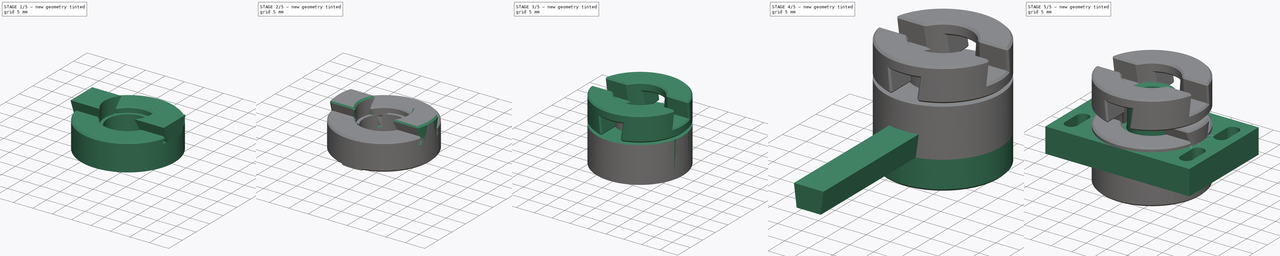
[diagram: build sequence overview — one tinted view per stage of 5, left to right]
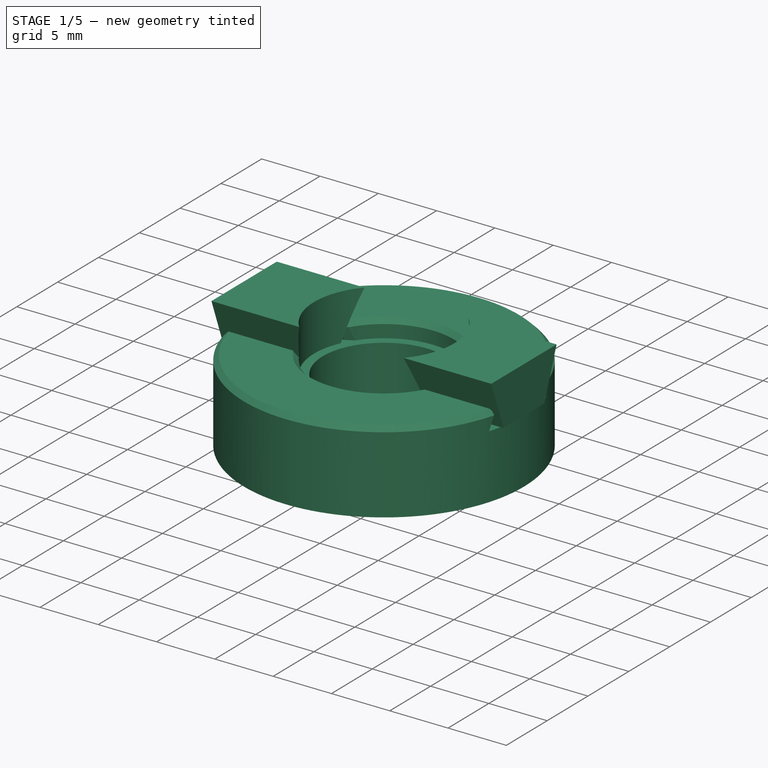
[diagram: stage 1 of 5 — iso view after this stage's code; geometry added in this stage tinted green]
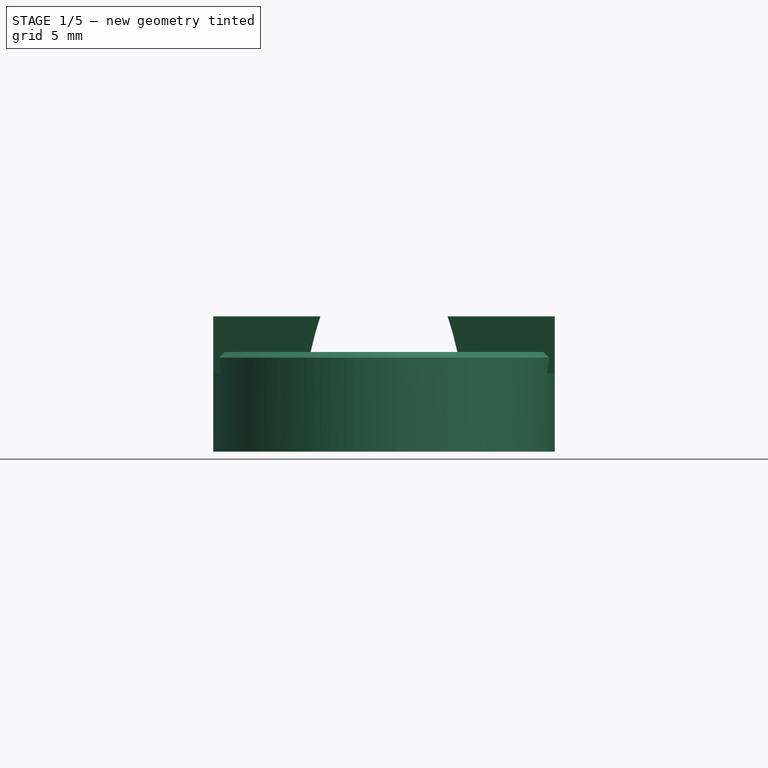
[diagram: stage 1 of 5 — front view after this stage's code; geometry added in this stage tinted green]
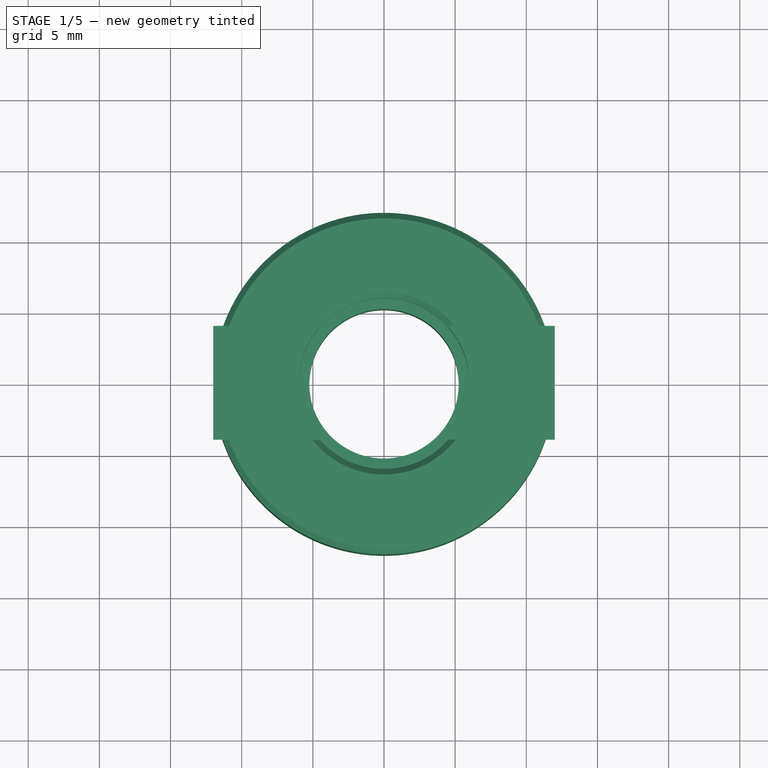
[diagram: stage 1 of 5 — top view after this stage's code; geometry added in this stage tinted green]
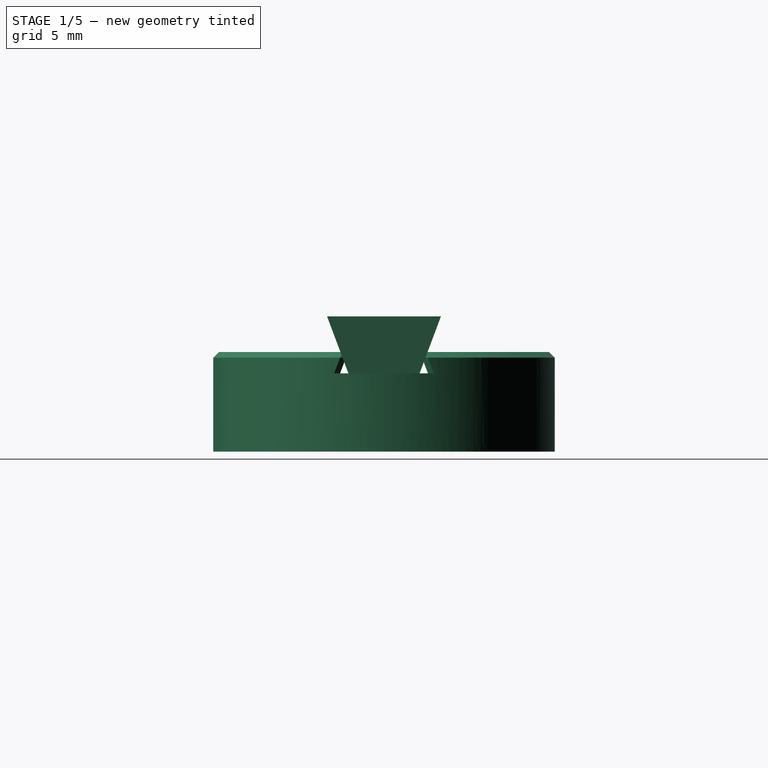
[diagram: stage 1 of 5 — right view after this stage's code; geometry added in this stage tinted green]
FCSTD DOCUMENT  (FreeCAD 0.19R24366 (Git))
Label: nut-mounter
License: All rights reserved
LicenseURL: http://en.wikipedia.org/wiki/All_rights_reserved
objects: Sketcher::SketchObject×19, PartDesign::Pad×10, PartDesign::Pocket×9, PartDesign::Body×7, Part::FeaturePython×3, PartDesign::Chamfer×3, Part::MultiFuse×3, Part::Feature×3, Part::MultiCommon×2, Part::Chamfer×2, PartDesign::Plane×2, Spreadsheet::Sheet×1, Part::Cut×1, App::DocumentObjectGroup×1
note: 86 computed .brp shape members not serialized (recipe doc carries the construction recipe); baked Part::Feature solids carry a one-line shape summary decoded from their .brp

FEATURE [App::DocumentObjectGroup] Group  label="testing"
  Group = -> [Fusion003,Chamfer002,Common001,Body,Body001]
FEATURE [Sketcher::SketchObject] Sketch010
  FullyConstrained = true
  MapMode = 5
  Support = -> [XY_Plane005]
  expr: Constraints[2] = <<args>>.top_bottom_inner_radius
  expr: Constraints[3] = <<args>>.top_bottom_outer_radius
  sketch-geometry (2):
    g0: Circle CenterX=0 CenterY=0 CenterZ=0 NormalX=0 NormalY=0 NormalZ=1 AngleXU=0 Radius=12
    g1: Circle CenterX=0 CenterY=0 CenterZ=0 NormalX=0 NormalY=0 NormalZ=1 AngleXU=0 Radius=5.25
  constraints (4):
    c: Coincident(g0,g-1)
    c: Coincident(g1,g0)
    c: Radius(g1) = 5.25
    c: Radius(g0) = 12
FEATURE [PartDesign::Pad] Pad007
  Direction = (1,1,1)
  Length = 5.5
  Length2 = 100
  Profile = -> Sketch010
  Type = 0
  expr: Length = <<args>>.top_thickness
FEATURE [PartDesign::Plane] DatumPlane
  Length = 60
  MapMode = 5
  Placement = pos=(0,0,0) rot=(0.57735,0.57735,0.57735;2.0944rad)
  ResizeMode = 0
  Support = -> [YZ_Plane005]
  Width = 60
FEATURE [Sketcher::SketchObject] Sketch011
  FullyConstrained = true
  MapMode = 5
  Placement = pos=(0,0,0) rot=(0.57735,0.57735,0.57735;2.0944rad)
  Support = -> [DatumPlane]
  expr: Constraints[6] = <<args>>.top_thickness
  expr: Constraints[7] = <<args>>.teeth_bottom_width
  expr: Constraints[8] = <<args>>.teeth_bottom_width / 2
  expr: Constraints[9] = <<args>>.teeth_top_width
  expr: Constraints[10] = <<args>>.teeth_top_width / 2
  expr: Constraints[11] = <<args>>.teeth_heigh
  sketch-geometry (4):
    g0: LineSegment StartX=-2.5 StartY=5.5 StartZ=0 EndX=2.5 EndY=5.5 EndZ=0
    g1: LineSegment StartX=2.5 StartY=5.5 StartZ=0 EndX=4 EndY=9.5 EndZ=0
    g2: LineSegment StartX=4 StartY=9.5 StartZ=0 EndX=-4 EndY=9.5 EndZ=0
    g3: LineSegment StartX=-4 StartY=9.5 StartZ=0 EndX=-2.5 EndY=5.5 EndZ=0
  constraints (12):
    c: Horizontal(g0)
    c: Coincident(g0,g1)
    c: Coincident(g1,g2)
    c: Horizontal(g2)
    c: Coincident(g2,g3)
    c: Coincident(g3,g0)
    c: DistanceY(g-1,g0) = 5.5
    c: DistanceX(g0,g0) = 5
    c: DistanceX(g-1,g0) = 2.5
    c: DistanceX(g2,g2) = 8
    c: DistanceX(g-1,g1) = 4
    c: DistanceY(g0,g1) = 4
FEATURE [PartDesign::Pad] Pad008
  BaseFeature = -> Pad007
  Direction = (1,1,1)
  Length = 24
  Length2 = 100
  Midplane = true
  Profile = -> Sketch011
  Type = 0
  expr: Length = <<args>>.top_bottom_outer_radius * 2
FEATURE [PartDesign::Plane] DatumPlane001
  AttachmentOffset = pos=(0,0,5.5) rot=(0,0,1;0rad)
  Length = 60
  MapMode = 5
  Placement = pos=(0,0,5.5) rot=(0,0,1;0rad)
  ResizeMode = 0
  Support = -> [XY_Plane005]
  Width = 60
  expr: .AttachmentOffset.Base.z = <<args>>.top_thickness
FEATURE [Sketcher::SketchObject] Sketch012
  FullyConstrained = false
  MapMode = 5
  Placement = pos=(0,0,5.5) rot=(0,0,1;0rad)
  Support = -> [DatumPlane001]
  expr: Constraints[0] = <<args>>.teeth_inner_radius
  sketch-geometry (1):
    g0: Circle CenterX=0 CenterY=0 CenterZ=0 NormalX=0 NormalY=0 NormalZ=1 AngleXU=0 Radius=6
  constraints (1):
    c: Radius(g0) = 6
FEATURE [PartDesign::Pocket] Pocket003
  BaseFeature = -> Pad008
  Length = 4
  Length2 = 100
  Profile = -> Sketch012
  Reversed = true
  Type = 0
  expr: Length = <<args>>.teeth_heigh
FEATURE [PartDesign::Body] Body005  label="top"
  Group = -> [Sketch010,Pad007,DatumPlane,Sketch011,Pad008,DatumPlane001,Sketch012,Pocket003,Sketch013,Pocket004,Sketch014,Pocket005,Sketch015,Pocket006,Chamfer003]
  Origin = -> Origin005
  Placement = pos=(0,0,-11) rot=(0,0,1;0rad)
  Tip = -> Chamfer003
FEATURE [Sketcher::SketchObject] Sketch022
  FullyConstrained = true
  MapMode = 5
  Support = -> [XY_Plane007]
  expr: Constraints[2] = <<args>>.center_inner_radius
  expr: Constraints[3] = <<args>>.center_outer_radius
  sketch-geometry (2):
    g0: Circle CenterX=0 CenterY=0 CenterZ=0 NormalX=0 NormalY=0 NormalZ=1 AngleXU=0 Radius=12
    g1: Circle CenterX=0 CenterY=0 CenterZ=0 NormalX=0 NormalY=0 NormalZ=1 AngleXU=0 Radius=6
  constraints (4):
    c: Coincident(g0,g-1)
    c: Coincident(g1,g0)
    c: Radius(g1) = 6
    c: Radius(g0) = 12
FEATURE [PartDesign::Pad] Pad011
  Direction = (1,1,1)
  Length = 7
  Length2 = 100
  Profile = -> Sketch022
  Type = 0
  expr: Length = <<args>>.center_thickness
FEATURE [Sketcher::SketchObject] Sketch023
  FullyConstrained = true
  MapMode = 5
  Placement = pos=(0,0,0) rot=(1,0,0;1.5708rad)
  Support = -> [XZ_Plane007]
  expr: Constraints[7] = <<args>>.teeth_top_width
  expr: Constraints[8] = <<args>>.teeth_bottom_width
  expr: Constraints[9] = <<args>>.teeth_top_width / 2
  expr: Constraints[22] = <<args>>.offset
  expr: Constraints[10] = <<args>>.teeth_bottom_width / 2
  expr: Constraints[11] = <<args>>.teeth_heigh
  expr: Constraints[23] = <<args>>.offset
  sketch-geometry (8):
    g0: LineSegment StartX=-2.5 StartY=0 StartZ=0 EndX=2.5 EndY=0 EndZ=0
    g1: LineSegment StartX=2.5 StartY=0 StartZ=0 EndX=4 EndY=4 EndZ=0
    g2: LineSegment StartX=4 StartY=4 StartZ=0 EndX=-4 EndY=4 EndZ=0
    g3: LineSegment StartX=-4 StartY=4 StartZ=0 EndX=-2.5 EndY=0 EndZ=0
    g4: LineSegment StartX=-2.525 StartY=0 StartZ=0 EndX=2.525 EndY=0 EndZ=0
    g5: LineSegment StartX=2.525 StartY=0 StartZ=0 EndX=4.2125 EndY=4.5 EndZ=0
    g6: LineSegment StartX=4.2125 StartY=4.5 StartZ=0 EndX=-4.2125 EndY=4.5 EndZ=0
    g7: LineSegment StartX=-4.2125 StartY=4.5 StartZ=0 EndX=-2.525 EndY=0 EndZ=0
  constraints (24):
    c: PointOnObject(g0,g-1)
    c: Horizontal(g0)
    c: Coincident(g0,g1)
    c: Coincident(g1,g2)
    c: Horizontal(g2)
    c: Coincident(g2,g3)
    c: Coincident(g3,g0)
    c: DistanceX(g2,g2) = 8
    c: DistanceX(g0,g0) = 5
    c: DistanceX(g2,g-1) = 4
    c: DistanceX(g0,g-1) = 2.5
    c: DistanceY(g-1,g2) = 4
    c: PointOnObject(g4,g-1)
    c: Horizontal(g4)
    c: Coincident(g4,g5)
    c: Coincident(g5,g6)
    c: Horizontal(g6)
    c: Coincident(g6,g7)
    c: Coincident(g7,g4)
    c: Parallel(g7,g3)
    c: Parallel(g1,g5)
    c: DistanceY(g2,g6) = 0.5
    c: DistanceX(g4,g0) = 0.025
    c: DistanceX(g0,g4) = 0.025
FEATURE [PartDesign::Pocket] Pocket011
  BaseFeature = -> Pad011
  Length = 5
  Length2 = 100
  Midplane = true
  Profile = -> Sketch023
  Type = 1
FEATURE [Sketcher::SketchObject] Sketch024
  ExternalGeometry = -> [Pocket011]
  FullyConstrained = true
  MapMode = 5
  Placement = pos=(0,0,0) rot=(0.57735,0.57735,0.57735;2.0944rad)
  Support = -> [YZ_Plane007]
  expr: Constraints[7] = <<args>>.teeth_bottom_width
  expr: Constraints[8] = <<args>>.teeth_bottom_width / 2
  expr: Constraints[9] = <<args>>.teeth_top_width
  expr: Constraints[22] = <<args>>.offset
  expr: Constraints[10] = <<args>>.teeth_top_width / 2
  expr: Constraints[11] = <<args>>.teeth_heigh
  expr: Constraints[23] = <<args>>.offset
  sketch-geometry (8):
    g0: LineSegment StartX=-2.5 StartY=7 StartZ=0 EndX=2.5 EndY=7 EndZ=0
    g1: LineSegment StartX=2.5 StartY=7 StartZ=0 EndX=4 EndY=3 EndZ=0
    g2: LineSegment StartX=4 StartY=3 StartZ=0 EndX=-4 EndY=3 EndZ=0
    g3: LineSegment StartX=-4 StartY=3 StartZ=0 EndX=-2.5 EndY=7 EndZ=0
    g4: LineSegment StartX=-2.525 StartY=7 StartZ=0 EndX=2.525 EndY=7 EndZ=0
    g5: LineSegment StartX=2.525 StartY=7 StartZ=0 EndX=4.2125 EndY=2.5 EndZ=0
    g6: LineSegment StartX=4.2125 StartY=2.5 StartZ=0 EndX=-4.2125 EndY=2.5 EndZ=0
    g7: LineSegment StartX=-4.2125 StartY=2.5 StartZ=0 EndX=-2.525 EndY=7 EndZ=0
  constraints (24):
    c: PointOnObject(g0,g-3)
    c: PointOnObject(g0,g-3)
    c: Coincident(g0,g1)
    c: Coincident(g1,g2)
    c: Horizontal(g2)
    c: Coincident(g2,g3)
    c: Coincident(g3,g0)
    c: DistanceX(g0,g0) = 5
    c: DistanceX(g0,g-1) = 2.5
    c: DistanceX(g2,g2) = 8
    c: DistanceX(g2,g-1) = 4
    c: DistanceY(g2,g0) = 4
    c: PointOnObject(g4,g-3)
    c: PointOnObject(g4,g-3)
    c: Coincident(g4,g5)
    c: Coincident(g5,g6)
    c: Horizontal(g6)
    c: Coincident(g6,g7)
    c: Coincident(g7,g4)
    c: Parallel(g7,g3)
    c: Parallel(g1,g5)
    c: DistanceY(g6,g2) = 0.5
    c: DistanceX(g4,g0) = 0.025
    c: DistanceX(g0,g4) = 0.025
FEATURE [PartDesign::Pocket] Pocket012
  BaseFeature = -> Pocket011
  Length = 5
  Length2 = 100
  Midplane = true
  Profile = -> Sketch024
  Type = 1
FEATURE [PartDesign::Chamfer] Chamfer005
  Angle = 45
  Base = -> Pocket012 [Face8,Face4,Face14,Face10,Edge12,Edge13,Edge14,Edge41,Edge43,Edge45,Edge18,Edge17,Edge16,Edge53,Edge51,Edge49,Edge3,Edge2,Edge9,Edge10,Edge36,Edge22,Edge21,Edge25,Edge28,Edge30,Edge32,Edge7,Edge6,Edge5]
  BaseFeature = -> Pocket012
  ChamferType = 0
  FlipDirection = false
  Size = 0.4
  Size2 = 1
  SupportTransform = false
FEATURE [PartDesign::Body] Body007  label="middle"
  Group = -> [Sketch022,Pad011,Sketch023,Pocket011,Sketch024,Pocket012,Chamfer005]
  Origin = -> Origin007
  Tip = -> Chamfer005
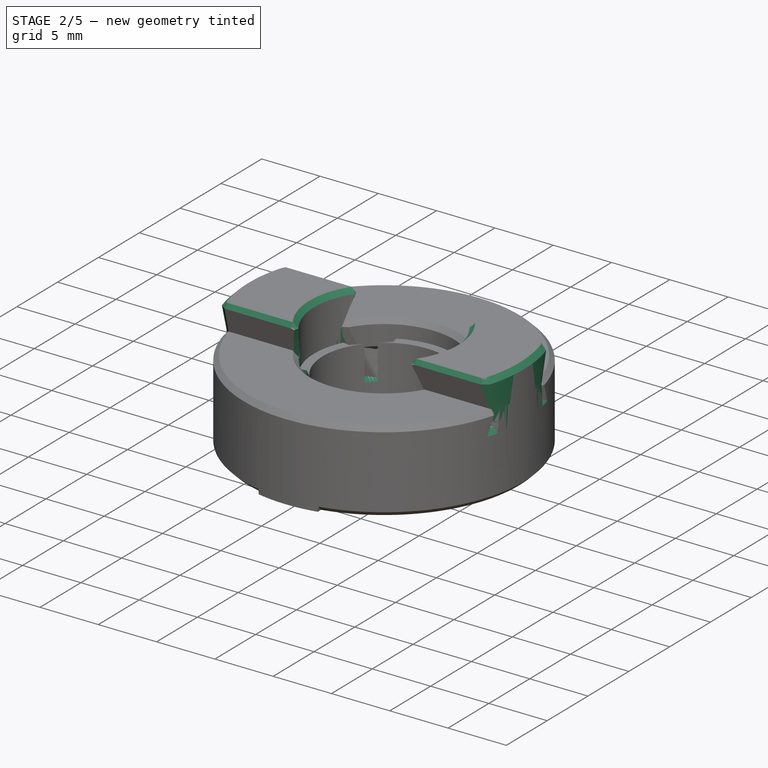
[diagram: stage 2 of 5 — iso view after this stage's code; geometry added in this stage tinted green]
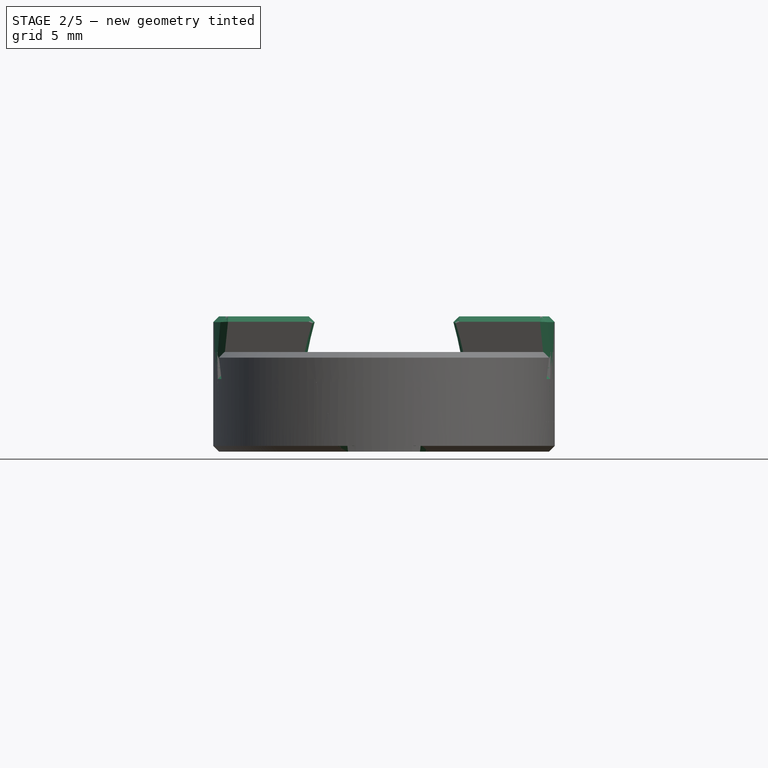
[diagram: stage 2 of 5 — front view after this stage's code; geometry added in this stage tinted green]
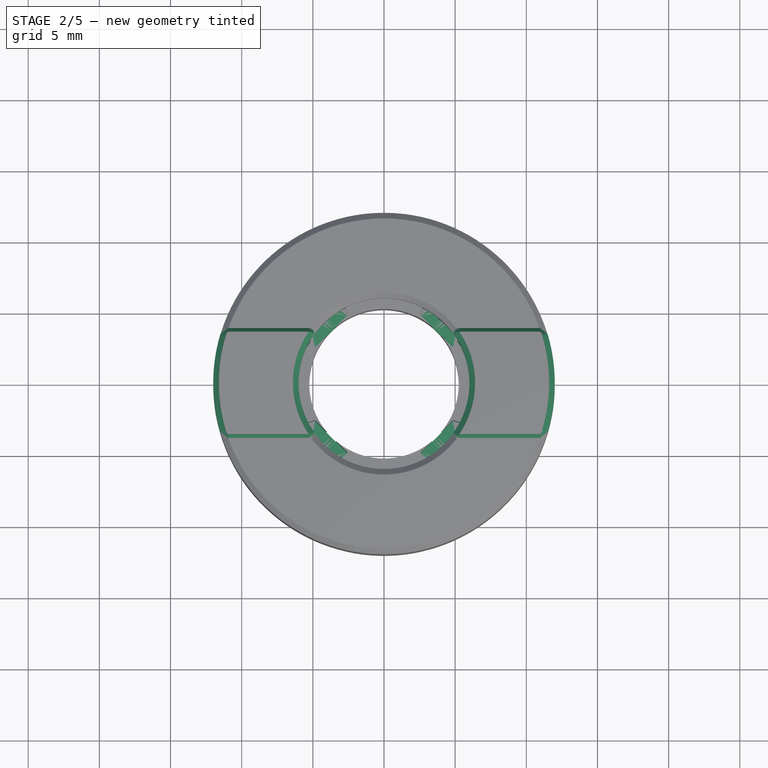
[diagram: stage 2 of 5 — top view after this stage's code; geometry added in this stage tinted green]
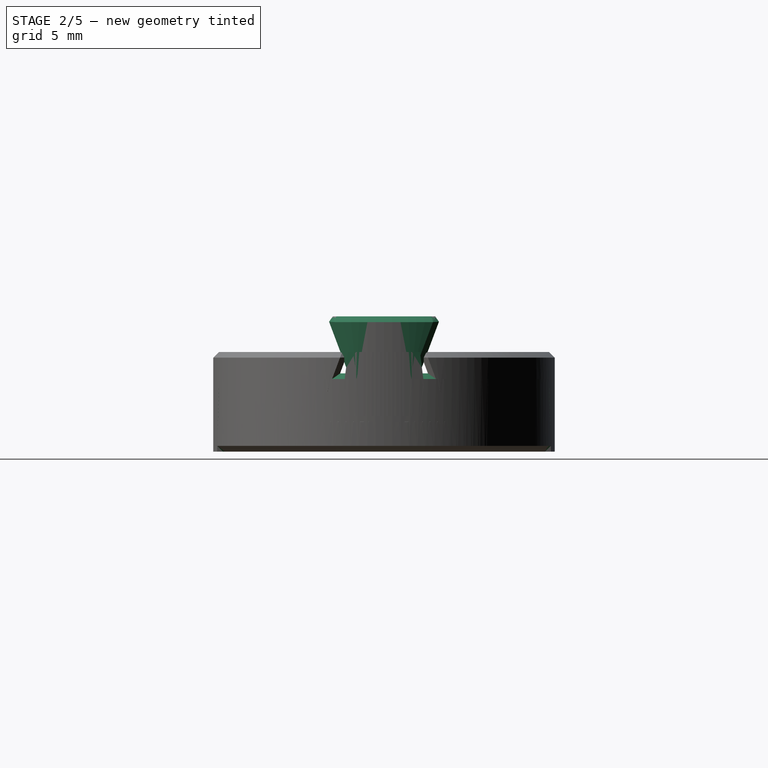
[diagram: stage 2 of 5 — right view after this stage's code; geometry added in this stage tinted green]
FEATURE [Part::Feature] Common001001  label="teeth-female-base001"
  shape: bbox 6.175 x 6.855 x 4.5 mm, 6 faces (baked)
FEATURE [Part::Feature] Common001002  label="teeth-female-base002"
  Placement = pos=(0,0,0) rot=(0,0,1;3.14159rad)
  shape: bbox 6.175 x 6.855 x 4.5 mm, 6 faces (baked)
FEATURE [Part::MultiFuse] Fusion
  Shapes = -> [Common001002,Common001001]
FEATURE [Part::Feature] Fusion004
  Placement = pos=(-1e-15,0,7) rot=(0.707107,0.707107,0;3.14159rad)
  shape: bbox 24 x 6.175 x 4.5 mm, 12 faces, 2 solids (baked)
FEATURE [Part::MultiFuse] Fusion005
  Shapes = -> [Fusion004,Fusion]
FEATURE [Sketcher::SketchObject] Sketch013
  FullyConstrained = true
  MapMode = 5
  Placement = pos=(0,0,5.5) rot=(0,0,1;0rad)
  Support = -> [DatumPlane001]
  expr: Constraints[2] = <<args>>.top_bottom_outer_radius
  expr: Constraints[3] = <<args>>.top_bottom_outer_radius + 5
  sketch-geometry (2):
    g0: Circle CenterX=0 CenterY=0 CenterZ=0 NormalX=0 NormalY=0 NormalZ=1 AngleXU=0 Radius=17
    g1: Circle CenterX=0 CenterY=0 CenterZ=0 NormalX=0 NormalY=0 NormalZ=1 AngleXU=0 Radius=12
  constraints (4):
    c: Coincident(g0,g-1)
    c: Coincident(g1,g0)
    c: Radius(g1) = 12
    c: Radius(g0) = 17
FEATURE [PartDesign::Pocket] Pocket004
  BaseFeature = -> Pocket003
  Length = 5
  Length2 = 100
  Profile = -> Sketch013
  Reversed = true
  Type = 0
FEATURE [Sketcher::SketchObject] Sketch014
  FullyConstrained = true
  MapMode = 5
  Placement = pos=(0,0,5.5) rot=(0,0,1;0rad)
  Support = -> [DatumPlane001]
  expr: Constraints[1] = <<args>>.screw_spacing_radius
  expr: Constraints[9] = <<args>>.screw_hole_radius
  sketch-geometry (7):
    g0: Circle CenterX=0 CenterY=0 CenterZ=0 NormalX=0 NormalY=0 NormalZ=1 AngleXU=0 Radius=8
    g1: Circle CenterX=-5.65685 CenterY=5.65685 CenterZ=0 NormalX=0 NormalY=0 NormalZ=1 AngleXU=0 Radius=1.5
    g2: Circle CenterX=5.65685 CenterY=5.65685 CenterZ=0 NormalX=0 NormalY=0 NormalZ=1 AngleXU=0 Radius=1.5
    g3: Circle CenterX=-5.65685 CenterY=-5.65685 CenterZ=0 NormalX=0 NormalY=0 NormalZ=1 AngleXU=0 Radius=1.5
    g4: Circle CenterX=5.65685 CenterY=-5.65685 CenterZ=0 NormalX=0 NormalY=0 NormalZ=1 AngleXU=0 Radius=1.5
    g5: LineSegment StartX=-5.65685 StartY=5.65685 StartZ=0 EndX=5.65685 EndY=-5.65685 EndZ=0
    g6: LineSegment StartX=-5.65685 StartY=-5.65685 StartZ=0 EndX=5.65685 EndY=5.65685 EndZ=0
  constraints (18):
    c: Coincident(g0,g-1)
    c: Radius(g0) = 8
    c: PointOnObject(g1,g0)
    c: PointOnObject(g2,g0)
    c: PointOnObject(g3,g0)
    c: PointOnObject(g4,g0)
    c: Equal(g1,g3)
    c: Equal(g3,g4)
    c: Equal(g4,g2)
    c: Radius(g1) = 1.5
    c: Horizontal(g1,g2)
    c: Horizontal(g3,g4)
    c: Vertical(g3,g1)
    c: Coincident(g5,g1)
    c: Coincident(g5,g4)
    c: Coincident(g6,g3)
    c: Coincident(g6,g2)
    c: Perpendicular(g6,g5)
FEATURE [PartDesign::Pocket] Pocket005
  BaseFeature = -> Pocket004
  Length = 5
  Length2 = 100
  Profile = -> Sketch014
  Refine = true
  Type = 1
FEATURE [Sketcher::SketchObject] Sketch015
  AttachmentOffset = pos=(0,0,0) rot=(0,0,1;0.785398rad)
  ExternalGeometry = -> [Pocket005]
  FullyConstrained = true
  MapMode = 5
  Placement = pos=(-2e-16,0,5.5) rot=(0,0,1;0.785398rad)
  Support = -> [Pocket005]
  expr: Constraints[75] = <<args>>.screw_nut_radius
  sketch-geometry (28):
    g0: LineSegment StartX=-5.22872 StartY=-1.6 StartZ=0 EndX=-5.22872 EndY=1.6 EndZ=0
    g1: LineSegment StartX=-5.22872 StartY=1.6 StartZ=0 EndX=-8 EndY=3.2 EndZ=0
    g2: LineSegment StartX=-8 StartY=3.2 StartZ=0 EndX=-10.7713 EndY=1.6 EndZ=0
    g3: LineSegment StartX=-10.7713 StartY=1.6 StartZ=0 EndX=-10.7713 EndY=-1.6 EndZ=0
    g4: LineSegment StartX=-10.7713 StartY=-1.6 StartZ=0 EndX=-8 EndY=-3.2 EndZ=0
    g5: LineSegment StartX=-8 StartY=-3.2 StartZ=0 EndX=-5.22872 EndY=-1.6 EndZ=0
    g6: Circle CenterX=-8 CenterY=7e-16 CenterZ=0 NormalX=0 NormalY=0 NormalZ=1 AngleXU=0 Radius=3.2
    g7: LineSegment StartX=10.7713 StartY=-1.6 StartZ=0 EndX=10.7713 EndY=1.6 EndZ=0
    g8: LineSegment StartX=10.7713 StartY=1.6 StartZ=0 EndX=8 EndY=3.2 EndZ=0
    g9: LineSegment StartX=8 StartY=3.2 StartZ=0 EndX=5.22872 EndY=1.6 EndZ=0
    g10: LineSegment StartX=5.22872 StartY=1.6 StartZ=0 EndX=5.22872 EndY=-1.6 EndZ=0
    g11: LineSegment StartX=5.22872 StartY=-1.6 StartZ=0 EndX=8 EndY=-3.2 EndZ=0
    g12: LineSegment StartX=8 StartY=-3.2 StartZ=0 EndX=10.7713 EndY=-1.6 EndZ=0
    g13: Circle CenterX=8 CenterY=-1.9e-15 CenterZ=0 NormalX=0 NormalY=0 NormalZ=1 AngleXU=0 Radius=3.2
    g14: LineSegment StartX=1.6 StartY=-10.7713 StartZ=0 EndX=3.2 EndY=-8 EndZ=0
    g15: LineSegment StartX=3.2 StartY=-8 StartZ=0 EndX=1.6 EndY=-5.22872 EndZ=0
    g16: LineSegment StartX=1.6 StartY=-5.22872 StartZ=0 EndX=-1.6 EndY=-5.22872 EndZ=0
    g17: LineSegment StartX=-1.6 StartY=-5.22872 StartZ=0 EndX=-3.2 EndY=-8 EndZ=0
    g18: LineSegment StartX=-3.2 StartY=-8 StartZ=0 EndX=-1.6 EndY=-10.7713 EndZ=0
    g19: LineSegment StartX=-1.6 StartY=-10.7713 StartZ=0 EndX=1.6 EndY=-10.7713 EndZ=0
    g20: Circle CenterX=1e-16 CenterY=-8 CenterZ=0 NormalX=0 NormalY=0 NormalZ=1 AngleXU=0 Radius=3.2
    g21: LineSegment StartX=1.6 StartY=5.22872 StartZ=0 EndX=3.2 EndY=8 EndZ=0
    g22: LineSegment StartX=3.2 StartY=8 StartZ=0 EndX=1.6 EndY=10.7713 EndZ=0
    g23: LineSegment StartX=1.6 StartY=10.7713 StartZ=0 EndX=-1.6 EndY=10.7713 EndZ=0
    g24: LineSegment StartX=-1.6 StartY=10.7713 StartZ=0 EndX=-3.2 EndY=8 EndZ=0
    g25: LineSegment StartX=-3.2 StartY=8 StartZ=0 EndX=-1.6 EndY=5.22872 EndZ=0
    g26: LineSegment StartX=-1.6 StartY=5.22872 StartZ=0 EndX=1.6 EndY=5.22872 EndZ=0
    g27: Circle CenterX=1e-16 CenterY=8 CenterZ=0 NormalX=0 NormalY=0 NormalZ=1 AngleXU=0 Radius=3.2
  constraints (64):
    c: Coincident(g0,g1)
    c: Coincident(g1,g2)
    c: Coincident(g2,g3)
    c: Coincident(g3,g4)
    c: Coincident(g4,g5)
    c: Coincident(g5,g0)
    c: Equal(g0, g1-g5) x5
    c: PointOnObject(g0,g6)
    c: PointOnObject(g1,g6)
    c: PointOnObject(g2,g6)
    c: PointOnObject(g3,g6)
    c: PointOnObject(g4,g6)
    c: PointOnObject(g5,g6)
    c: Coincident(g6,g-5)
    c: Coincident(g7,g8)
    c: Coincident(g8,g9)
    c: Coincident(g9,g10)
    c: Coincident(g10,g11)
    c: Coincident(g11,g12)
    c: Coincident(g12,g7)
    c: Equal(g7, g8-g12) x5
    c: PointOnObject(g7,g13)
    c: PointOnObject(g8,g13)
    c: PointOnObject(g9,g13)
    c: PointOnObject(g10,g13)
    c: PointOnObject(g11,g13)
    c: PointOnObject(g12,g13)
    c: Coincident(g13,g-4)
    c: Coincident(g14,g15)
    c: Coincident(g15,g16)
    c: Coincident(g16,g17)
    c: Coincident(g17,g18)
    c: Coincident(g18,g19)
    c: Coincident(g19,g14)
    c: Equal(g14, g15-g19) x5
    c: PointOnObject(g14,g20)
    c: PointOnObject(g15,g20)
    c: PointOnObject(g16,g20)
    c: PointOnObject(g17,g20)
    c: PointOnObject(g18,g20)
    c: PointOnObject(g19,g20)
    c: Coincident(g20,g-6)
    c: Coincident(g21,g22)
    c: Coincident(g22,g23)
    c: Coincident(g23,g24)
    c: Coincident(g24,g25)
    c: Coincident(g25,g26)
    c: Coincident(g26,g21)
    c: Equal(g21, g22-g26) x5
    c: PointOnObject(g21,g27)
    c: PointOnObject(g22,g27)
    c: PointOnObject(g23,g27)
    c: PointOnObject(g24,g27)
    c: PointOnObject(g25,g27)
    c: PointOnObject(g26,g27)
    c: Coincident(g27,g-3)
    c: Equal(g27,g6)
    c: Equal(g6,g20)
    c: Equal(g20,g13)
    c: Radius(g27) = 3.2
    c: Horizontal(g24,g27)
    c: Horizontal(g17,g20)
    c: Vertical(g6,g1)
    c: Vertical(g13,g8)
FEATURE [PartDesign::Pocket] Pocket006
  BaseFeature = -> Pocket005
  Length = 3
  Length2 = 100
  Profile = -> Sketch015
  Type = 0
  expr: Length = <<args>>.mounting_nut_deep
FEATURE [PartDesign::Chamfer] Chamfer003
  Angle = 45
  Base = -> Pocket006 [Face8,Edge15,Edge61,Face5,Edge60,Edge1,Edge3,Face7,Edge62,Edge8,Edge13,Edge72,Edge14,Edge7]
  BaseFeature = -> Pocket006
  ChamferType = 0
  FlipDirection = false
  Size = 0.4
  Size2 = 1
  SupportTransform = false
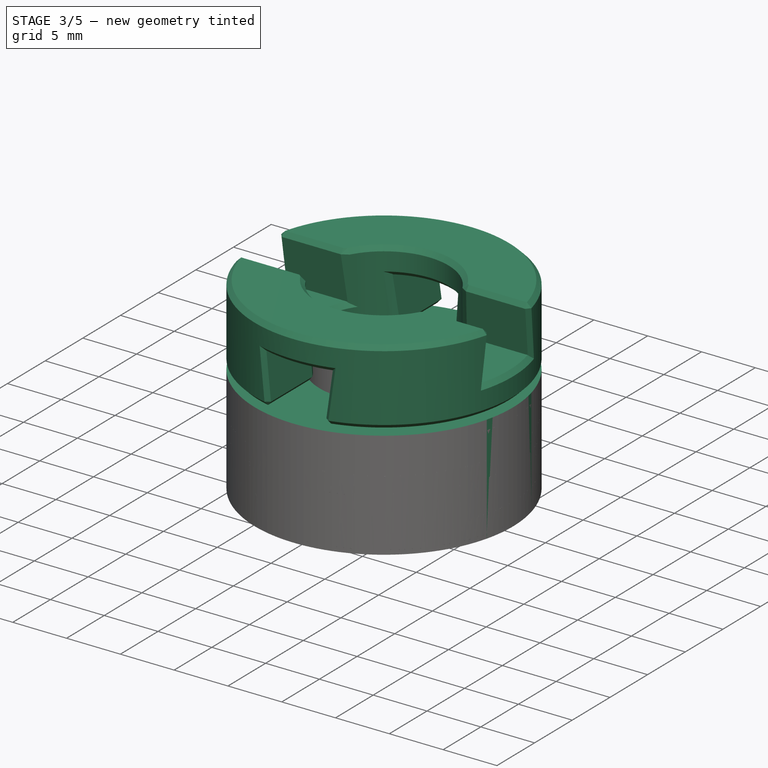
[diagram: stage 3 of 5 — iso view after this stage's code; geometry added in this stage tinted green]
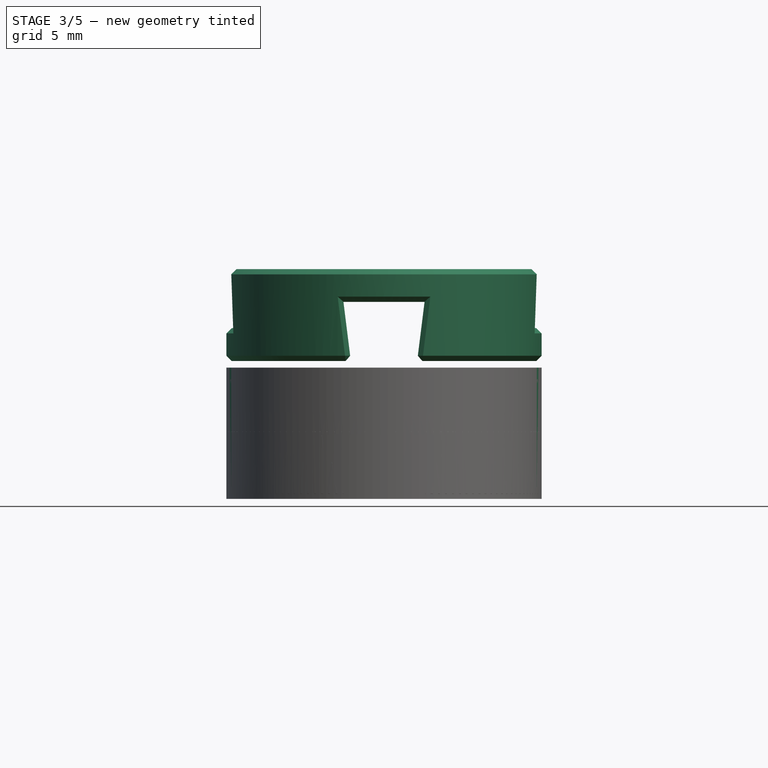
[diagram: stage 3 of 5 — front view after this stage's code; geometry added in this stage tinted green]
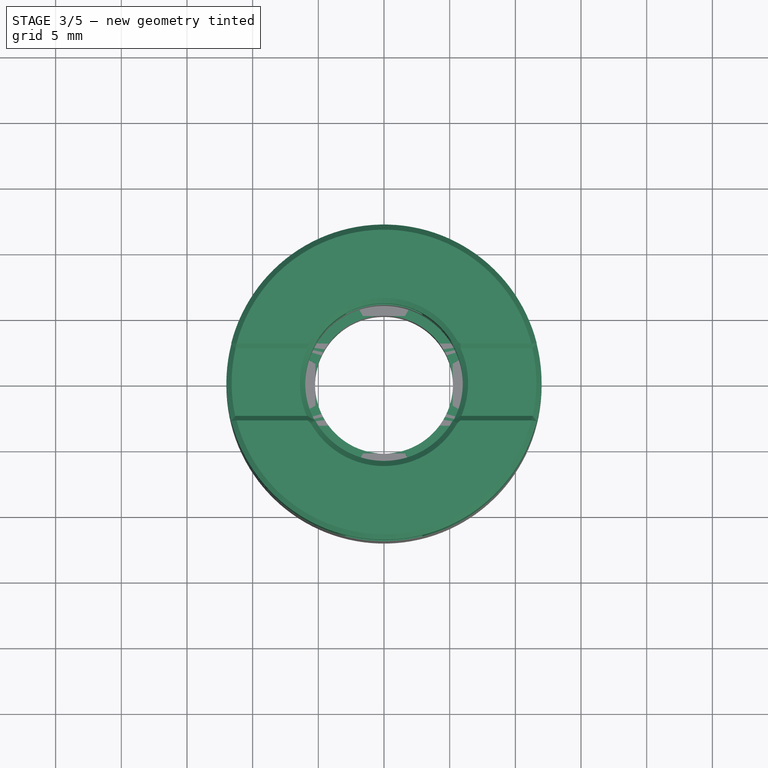
[diagram: stage 3 of 5 — top view after this stage's code; geometry added in this stage tinted green]
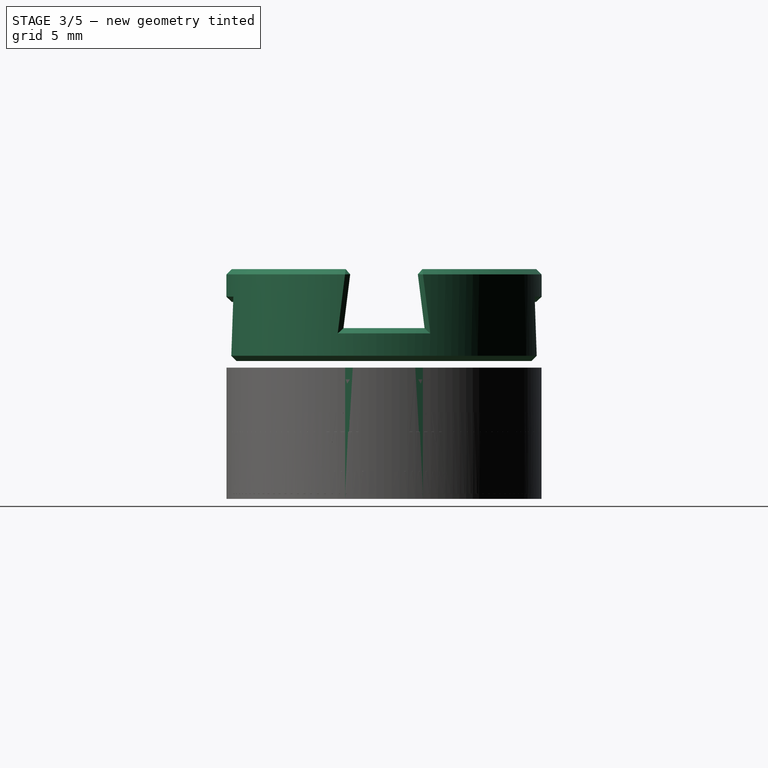
[diagram: stage 3 of 5 — right view after this stage's code; geometry added in this stage tinted green]
FEATURE [PartDesign::Body] Body001
  Group = -> [Sketch003,Pad003,Sketch004,Pocket,Sketch005,Pocket001]
  Origin = -> Origin001
  Tip = -> Pocket001
FEATURE [Sketcher::SketchObject] Sketch006
  FullyConstrained = true
  MapMode = 5
  Support = -> [XY_Plane002]
  sketch-geometry (8):
    g0: Circle CenterX=0 CenterY=0 CenterZ=0 NormalX=0 NormalY=0 NormalZ=1 AngleXU=0 Radius=12
    g1: Circle CenterX=0 CenterY=0 CenterZ=0 NormalX=0 NormalY=0 NormalZ=1 AngleXU=0 Radius=5.25
    g2: Circle CenterX=0 CenterY=0 CenterZ=0 NormalX=0 NormalY=0 NormalZ=1 AngleXU=0 Radius=8
    g3: Circle CenterX=-8 CenterY=0 CenterZ=0 NormalX=0 NormalY=0 NormalZ=1 AngleXU=0 Radius=1.6
    g4: Circle CenterX=8 CenterY=0 CenterZ=0 NormalX=0 NormalY=0 NormalZ=1 AngleXU=0 Radius=1.6
    g5: Circle CenterX=0 CenterY=8 CenterZ=0 NormalX=0 NormalY=0 NormalZ=1 AngleXU=0 Radius=1.6
    g6: Circle CenterX=0 CenterY=-8 CenterZ=0 NormalX=0 NormalY=0 NormalZ=1 AngleXU=0 Radius=1.6
    g7: Circle CenterX=-8 CenterY=0 CenterZ=0 NormalX=0 NormalY=0 NormalZ=1 AngleXU=0 Radius=3.5
  constraints (20):
    c: Coincident(g0,g-1)
    c: Coincident(g1,g0)
    c: Coincident(g2,g0)
    c: PointOnObject(g3,g2)
    c: PointOnObject(g4,g2)
    c: PointOnObject(g5,g2)
    c: PointOnObject(g6,g2)
    c: Vertical(g6,g0)
    c: Vertical(g0,g5)
    c: Horizontal(g3,g0)
    c: Horizontal(g0,g4)
    c: Equal(g3,g5)
    c: Equal(g5,g4)
    c: Equal(g4,g6)
    c: Radius(g5) = 1.6
    c: Radius(g1) = 5.25
    c: Radius(g2) = 8
    c: Coincident(g7,g3)
    c: Radius(g7) = 3.5
    c: Radius(g0) = 12
FEATURE [PartDesign::Pad] Pad004
  Direction = (1,1,1)
  Length = 6
  Length2 = 100
  Profile = -> Sketch006
  Type = 0
FEATURE [Sketcher::SketchObject] Sketch007
  ExternalGeometry = -> [Pad004]
  FullyConstrained = true
  MapMode = 5
  Placement = pos=(0,0,6) rot=(0,0,1;0rad)
  Support = -> [Pad004]
  sketch-geometry (28):
    g0: LineSegment StartX=3.2 StartY=8 StartZ=0 EndX=1.6 EndY=10.7713 EndZ=0
    g1: LineSegment StartX=1.6 StartY=10.7713 StartZ=0 EndX=-1.6 EndY=10.7713 EndZ=0
    g2: LineSegment StartX=-1.6 StartY=10.7713 StartZ=0 EndX=-3.2 EndY=8 EndZ=0
    g3: LineSegment StartX=-3.2 StartY=8 StartZ=0 EndX=-1.6 EndY=5.22872 EndZ=0
    g4: LineSegment StartX=-1.6 StartY=5.22872 StartZ=0 EndX=1.6 EndY=5.22872 EndZ=0
    g5: LineSegment StartX=1.6 StartY=5.22872 StartZ=0 EndX=3.2 EndY=8 EndZ=0
    g6: Circle CenterX=0 CenterY=8 CenterZ=0 NormalX=0 NormalY=0 NormalZ=1 AngleXU=0 Radius=3.2
    g7: LineSegment StartX=-8 StartY=-3.2 StartZ=0 EndX=-5.22872 EndY=-1.6 EndZ=0
    g8: LineSegment StartX=-5.22872 StartY=-1.6 StartZ=0 EndX=-5.22872 EndY=1.6 EndZ=0
    g9: LineSegment StartX=-5.22872 StartY=1.6 StartZ=0 EndX=-8 EndY=3.2 EndZ=0
    g10: LineSegment StartX=-8 StartY=3.2 StartZ=0 EndX=-10.7713 EndY=1.6 EndZ=0
    g11: LineSegment StartX=-10.7713 StartY=1.6 StartZ=0 EndX=-10.7713 EndY=-1.6 EndZ=0
    g12: LineSegment StartX=-10.7713 StartY=-1.6 StartZ=0 EndX=-8 EndY=-3.2 EndZ=0
    g13: Circle CenterX=-8 CenterY=0 CenterZ=0 NormalX=0 NormalY=0 NormalZ=1 AngleXU=0 Radius=3.2
    g14: LineSegment StartX=8 StartY=-3.2 StartZ=0 EndX=10.7713 EndY=-1.6 EndZ=0
    g15: LineSegment StartX=10.7713 StartY=-1.6 StartZ=0 EndX=10.7713 EndY=1.6 EndZ=0
    g16: LineSegment StartX=10.7713 StartY=1.6 StartZ=0 EndX=8 EndY=3.2 EndZ=0
    g17: LineSegment StartX=8 StartY=3.2 StartZ=0 EndX=5.22872 EndY=1.6 EndZ=0
    g18: LineSegment StartX=5.22872 StartY=1.6 StartZ=0 EndX=5.22872 EndY=-1.6 EndZ=0
    g19: LineSegment StartX=5.22872 StartY=-1.6 StartZ=0 EndX=8 EndY=-3.2 EndZ=0
    g20: Circle CenterX=8 CenterY=0 CenterZ=0 NormalX=0 NormalY=0 NormalZ=1 AngleXU=0 Radius=3.2
    g21: LineSegment StartX=1.6 StartY=-10.7713 StartZ=0 EndX=3.2 EndY=-8 EndZ=0
    g22: LineSegment StartX=3.2 StartY=-8 StartZ=0 EndX=1.6 EndY=-5.22872 EndZ=0
    g23: LineSegment StartX=1.6 StartY=-5.22872 StartZ=0 EndX=-1.6 EndY=-5.22872 EndZ=0
    g24: LineSegment StartX=-1.6 StartY=-5.22872 StartZ=0 EndX=-3.2 EndY=-8 EndZ=0
    g25: LineSegment StartX=-3.2 StartY=-8 StartZ=0 EndX=-1.6 EndY=-10.7713 EndZ=0
    g26: LineSegment StartX=-1.6 StartY=-10.7713 StartZ=0 EndX=1.6 EndY=-10.7713 EndZ=0
    g27: Circle CenterX=0 CenterY=-8 CenterZ=0 NormalX=0 NormalY=0 NormalZ=1 AngleXU=0 Radius=3.2
  constraints (64):
    c: Coincident(g0,g1)
    c: Coincident(g1,g2)
    c: Coincident(g2,g3)
    c: Coincident(g3,g4)
    c: Coincident(g4,g5)
    c: Coincident(g5,g0)
    c: Equal(g0, g1-g5) x5
    c: PointOnObject(g0,g6)
    c: PointOnObject(g1,g6)
    c: PointOnObject(g2,g6)
    c: PointOnObject(g3,g6)
    c: PointOnObject(g4,g6)
    c: PointOnObject(g5,g6)
    c: Coincident(g6,g-5)
    c: Coincident(g7,g8)
    c: Coincident(g8,g9)
    c: Coincident(g9,g10)
    c: Coincident(g10,g11)
    c: Coincident(g11,g12)
    c: Coincident(g12,g7)
    c: Equal(g7, g8-g12) x5
    c: PointOnObject(g7,g13)
    c: PointOnObject(g8,g13)
    c: PointOnObject(g9,g13)
    c: PointOnObject(g10,g13)
    c: PointOnObject(g11,g13)
    c: PointOnObject(g12,g13)
    c: Coincident(g13,g-4)
    c: Coincident(g14,g15)
    c: Coincident(g15,g16)
    c: Coincident(g16,g17)
    c: Coincident(g17,g18)
    c: Coincident(g18,g19)
    c: Coincident(g19,g14)
    c: Equal(g14, g15-g19) x5
    c: PointOnObject(g14,g20)
    c: PointOnObject(g15,g20)
    c: PointOnObject(g16,g20)
    c: PointOnObject(g17,g20)
    c: PointOnObject(g18,g20)
    c: PointOnObject(g19,g20)
    c: Coincident(g20,g-6)
    c: Equal(g6,g20)
    c: Vertical(g13,g7)
    c: Vertical(g20,g14)
    c: Horizontal(g6,g0)
    c: Radius(g6) = 3.2
    c: Coincident(g21,g22)
    c: Coincident(g22,g23)
    c: Coincident(g23,g24)
    c: Coincident(g24,g25)
    c: Coincident(g25,g26)
    c: Coincident(g26,g21)
    c: Equal(g21, g22-g26) x5
    c: PointOnObject(g21,g27)
    c: PointOnObject(g22,g27)
    c: PointOnObject(g23,g27)
    c: PointOnObject(g24,g27)
    c: PointOnObject(g25,g27)
    c: PointOnObject(g26,g27)
    c: Coincident(g27,g-3)
    c: Horizontal(g24,g27)
    c: Equal(g27,g13)
    c: Equal(g13,g6)
FEATURE [PartDesign::Pocket] Pocket002
  BaseFeature = -> Pad004
  Length = 3
  Length2 = 100
  Profile = -> Sketch007
  Type = 0
FEATURE [PartDesign::Body] Body003  label="teeth-male"
  Group = -> [Sketch008,Pad005]
  Origin = -> Origin003
  Placement = pos=(0,20,0) rot=(0,0,1;0rad)
  Tip = -> Pad005
FEATURE [Part::FeaturePython] Tube  # WARN: FeaturePython — macro-defined, semantics opaque (R4)
  AttacherType = Attacher::AttachEngine3D
  Height = 10
  InnerRadius = 6
  OuterRadius = 12
FEATURE [PartDesign::Chamfer] Chamfer001
  Angle = 45
  Base = -> Pocket002 [Face2]
  BaseFeature = -> Pocket002
  ChamferType = 0
  FlipDirection = false
  Size = 0.4
  Size2 = 1
  SupportTransform = false
FEATURE [Part::FeaturePython] Tube002  # WARN: FeaturePython — macro-defined, semantics opaque (R4)
  AttacherType = Attacher::AttachEngine3D
  Height = 7
  InnerRadius = 6
  OuterRadius = 12
FEATURE [Part::Cut] Cut
  Base = -> Tube002
  Tool = -> Fusion005
FEATURE [Part::Chamfer] Chamfer002
  Base = -> Cut
  Edges = 44 edges r=0.4: [Edge1,Edge2,Edge3,Edge4,Edge5,Edge6,Edge7,Edge9,Edge10,Edge11,Edge12,Edge13,Edge14,Edge15,Edge16,Edge17,Edge18,Edge19,Edge20,Edge21,Edge22,Edge23,Edge25,Edge27,Edge28,Edge29,Edge30,Edge31,Edge33,Edge34,Edge36,Edge37,Edge38,Edge39,Edge40,Edge42,Edge44,Edge45,Edge46,Edge47,Edge48,Edge50,Edge52,Edge53]
  Placement = pos=(0,0,10.5) rot=(0,0,1;0rad)
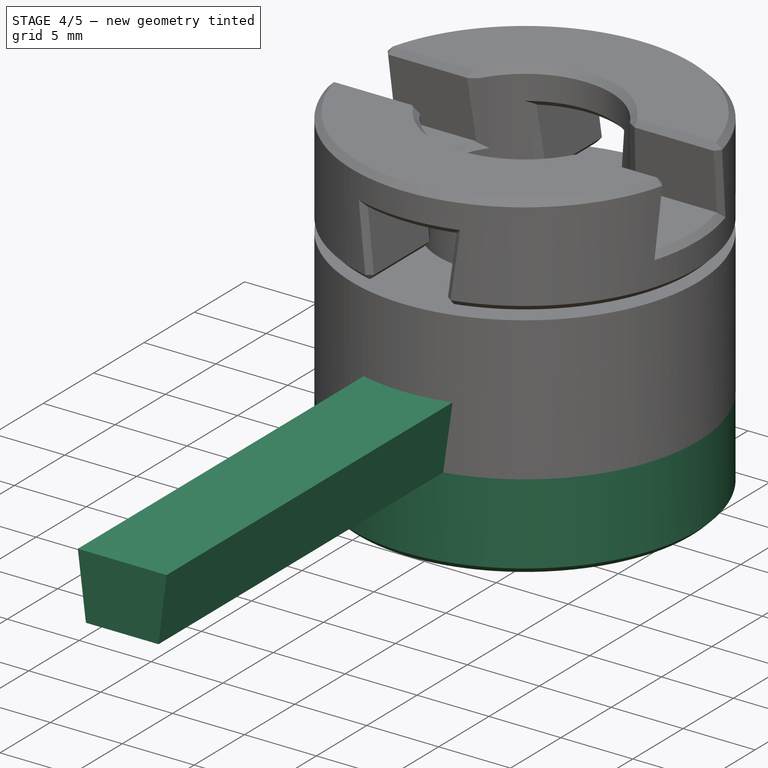
[diagram: stage 4 of 5 — iso view after this stage's code; geometry added in this stage tinted green]
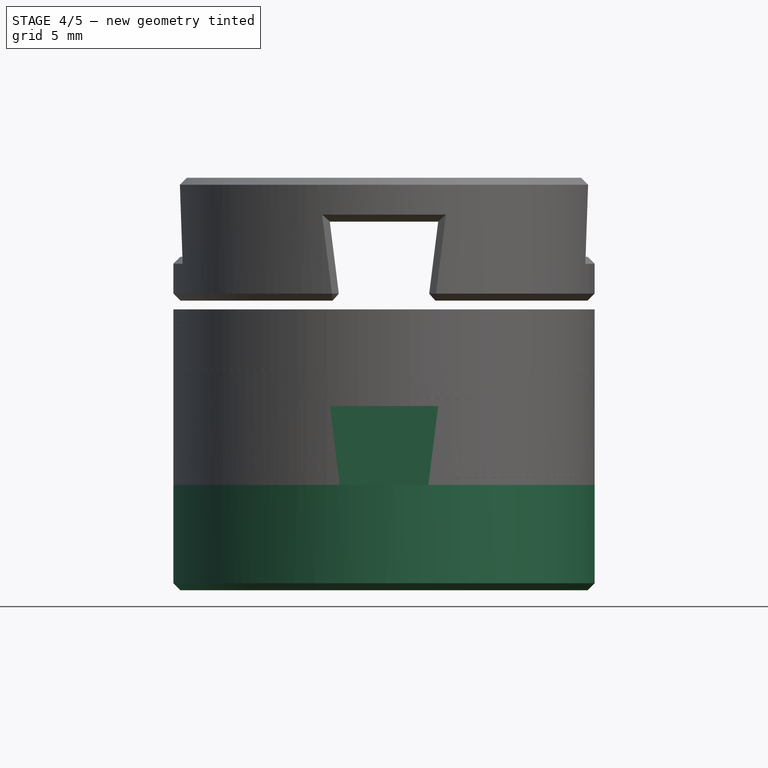
[diagram: stage 4 of 5 — front view after this stage's code; geometry added in this stage tinted green]
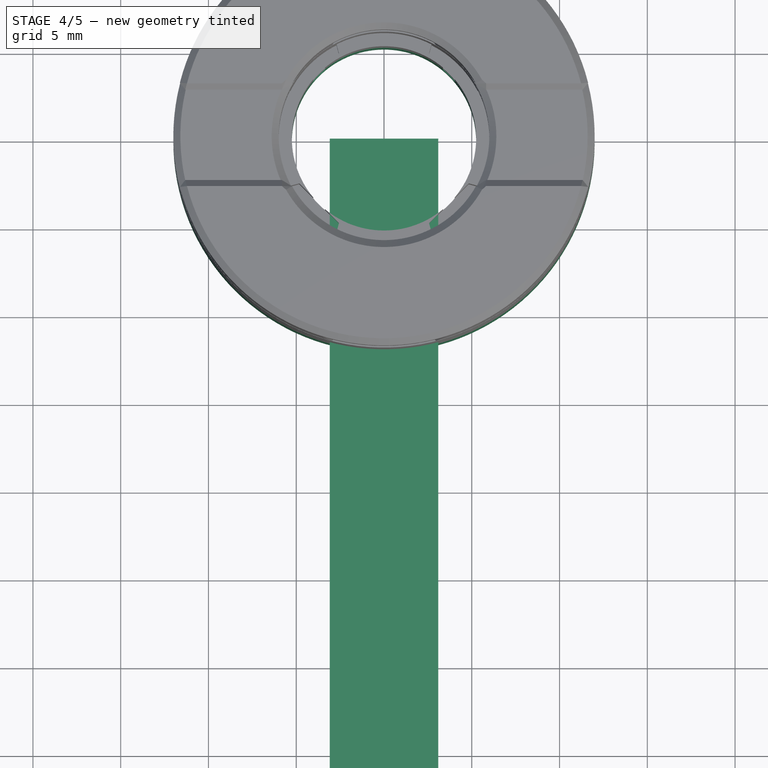
[diagram: stage 4 of 5 — top view after this stage's code; geometry added in this stage tinted green]
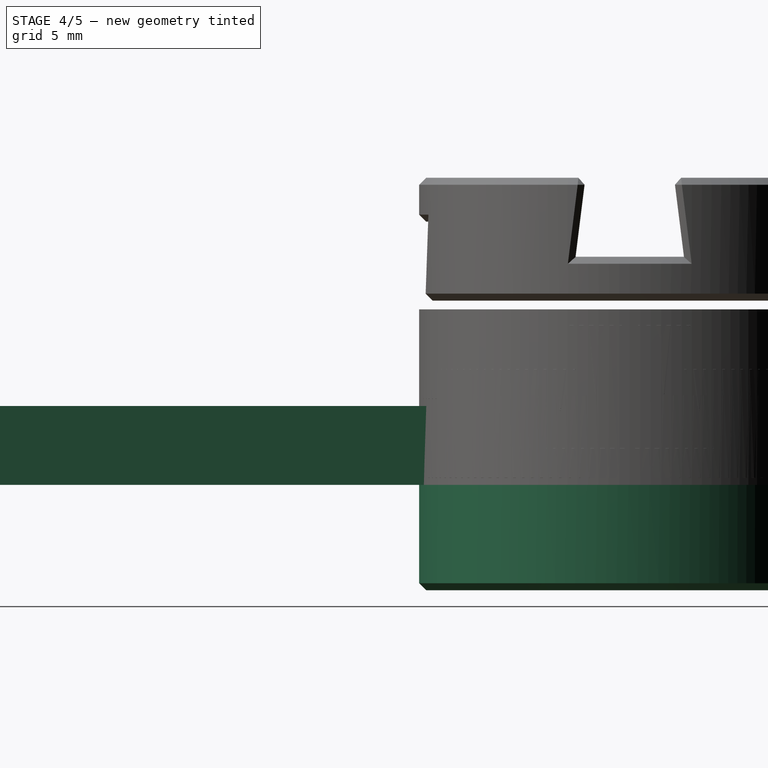
[diagram: stage 4 of 5 — right view after this stage's code; geometry added in this stage tinted green]
FEATURE [Sketcher::SketchObject] Sketch008
  FullyConstrained = true
  MapMode = 5
  Placement = pos=(0,0,0) rot=(1,0,0;1.5708rad)
  Support = -> [XZ_Plane003]
  sketch-geometry (4):
    g0: LineSegment StartX=-2.5 StartY=0 StartZ=0 EndX=2.5 EndY=0 EndZ=0
    g1: LineSegment StartX=2.5 StartY=0 StartZ=0 EndX=3 EndY=4 EndZ=0
    g2: LineSegment StartX=3 StartY=4 StartZ=0 EndX=-3 EndY=4 EndZ=0
    g3: LineSegment StartX=-3 StartY=4 StartZ=0 EndX=-2.5 EndY=0 EndZ=0
  constraints (12):
    c: PointOnObject(g0,g-1)
    c: PointOnObject(g0,g-1)
    c: Coincident(g0,g1)
    c: Coincident(g1,g2)
    c: Horizontal(g2)
    c: Coincident(g2,g3)
    c: Coincident(g3,g0)
    c: DistanceX(g0,g0) = 5
    c: DistanceX(g-1,g0) = 2.5
    c: DistanceX(g2,g2) = 6
    c: DistanceX(g2,g-1) = 3
    c: DistanceY(g-1,g2) = 4
FEATURE [PartDesign::Pad] Pad005
  Direction = (1,1,1)
  Length = 40
  Length2 = 100
  Placement = pos=(0,0,0) rot=(1,0,0;1.5708rad)
  Profile = -> Sketch008
  Type = 0
FEATURE [Part::MultiCommon] Common
  Shapes = -> [Body003,Tube]
FEATURE [Part::Chamfer] Chamfer
  Base = -> Common
  Edges = 16 edges r=0.4: [Edge5,Edge6,Edge7,Edge8,Edge9,Edge10,Edge11,Edge12,Edge17,Edge18,Edge19,Edge20,Edge21,Edge22,Edge23,Edge24]
  Placement = pos=(0,0,6) rot=(0,0,-1;0.785398rad)
FEATURE [PartDesign::Body] Body002  label="top-bottom-base"
  Group = -> [Sketch006,Pad004,Sketch007,Pocket002,Chamfer001]
  Origin = -> Origin002
  Tip = -> Chamfer001
FEATURE [Spreadsheet::Sheet] Spreadsheet  label="args"
  cells = A1=offset; B1(offset)=0.025; A3=top thickness; B3(top_thickness)=5.5; A4=bottom thickness; B4(bottom_thickness)=5; A5=center thickness; B5(center_thickness)=7; A7=top-bottom outer radius; B7(top_bottom_outer_radius)=12; A8=center outer radius; B8(center_outer_radius)=12; A9=top-bottom inner radius; B9(top_bottom_inner_radius)=5.25; A10=center inner radius; B10(center_inner_radius)=6; A11=mounting screw spacing radius; B11(screw_spacing_radius)=8; A12=mounting nut radius; B12(screw_nut_radius)=3.2; A13=mounting nut deep; B13(mounting_nut_deep)=3; A14=screw hole radius; B14(screw_hole_radius)=1.5; A16=teeth bottom width; B16(teeth_bottom_width)=5; A17=teeth top width; B17(teeth_top_width)=8; A18=teeth heigh; B18(teeth_heigh)=4; A19=teeth inner radius; B19(teeth_inner_radius)=6
FEATURE [Sketcher::SketchObject] Sketch009
  FullyConstrained = true
  MapMode = 5
  Placement = pos=(0,0,0) rot=(1,0,0;1.5708rad)
  Support = -> [XZ_Plane004]
  expr: Constraints[22] = Spreadsheet.offset
  expr: Constraints[23] = Spreadsheet.offset
  sketch-geometry (8):
    g0: LineSegment StartX=-2.5 StartY=0 StartZ=0 EndX=2.5 EndY=0 EndZ=0
    g1: LineSegment StartX=2.5 StartY=0 StartZ=0 EndX=3 EndY=4 EndZ=0
    g2: LineSegment StartX=3 StartY=4 StartZ=0 EndX=-3 EndY=4 EndZ=0
    g3: LineSegment StartX=-3 StartY=4 StartZ=0 EndX=-2.5 EndY=0 EndZ=0
    g4: LineSegment StartX=-2.525 StartY=0 StartZ=0 EndX=2.525 EndY=0 EndZ=0
    g5: LineSegment StartX=2.525 StartY=0 StartZ=0 EndX=3.0875 EndY=4.5 EndZ=0
    g6: LineSegment StartX=3.0875 StartY=4.5 StartZ=0 EndX=-3.0875 EndY=4.5 EndZ=0
    g7: LineSegment StartX=-3.0875 StartY=4.5 StartZ=0 EndX=-2.525 EndY=0 EndZ=0
  constraints (24):
    c: PointOnObject(g0,g-1)
    c: PointOnObject(g0,g-1)
    c: Coincident(g0,g1)
    c: Coincident(g1,g2)
    c: Horizontal(g2)
    c: Coincident(g2,g3)
    c: Coincident(g3,g0)
    c: DistanceX(g2,g2) = 6
    c: DistanceX(g2,g-1) = 3
    c: DistanceX(g0,g-1) = 2.5
    c: DistanceX(g0,g0) = 5
    c: DistanceY(g-1,g1) = 4
    c: PointOnObject(g4,g-1)
    c: PointOnObject(g4,g-1)
    c: Coincident(g4,g5)
    c: Coincident(g5,g6)
    c: Horizontal(g6)
    c: Coincident(g6,g7)
    c: Coincident(g7,g4)
    c: Parallel(g7,g3)
    c: Parallel(g1,g5)
    c: DistanceY(g-1,g6) = 4.5
    c: DistanceX(g4,g0) = 0.025
    c: DistanceX(g0,g4) = 0.025
FEATURE [PartDesign::Pad] Pad006
  Direction = (1,1,1)
  Length = 40
  Length2 = 100
  Placement = pos=(0,0,0) rot=(1,0,0;1.5708rad)
  Profile = -> Sketch009
  Type = 0
FEATURE [PartDesign::Body] Body004  label="teeth-female"
  Group = -> [Sketch009,Pad006]
  Origin = -> Origin004
  Tip = -> Pad006
FEATURE [Part::FeaturePython] Tube001  # WARN: FeaturePython — macro-defined, semantics opaque (R4)
  AttacherType = Attacher::AttachEngine3D
  Height = 10
  InnerRadius = 6
  OuterRadius = 12
FEATURE [Part::MultiFuse] Fusion003
  Placement = pos=(0,0,-6) rot=(0,0,1;0.785398rad)
  Shapes = -> [Body002,Chamfer]
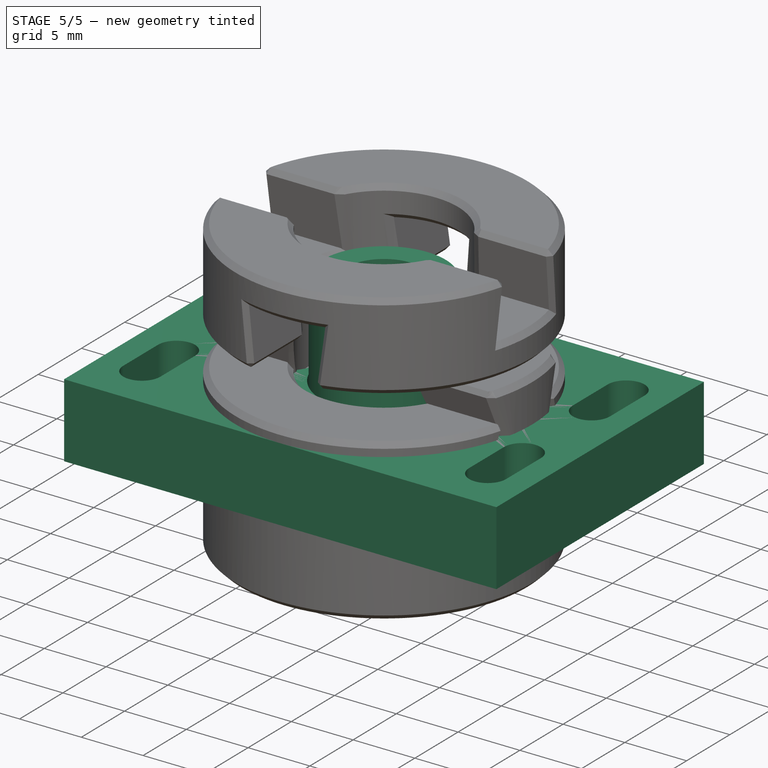
[diagram: stage 5 of 5 — iso view after this stage's code; geometry added in this stage tinted green]
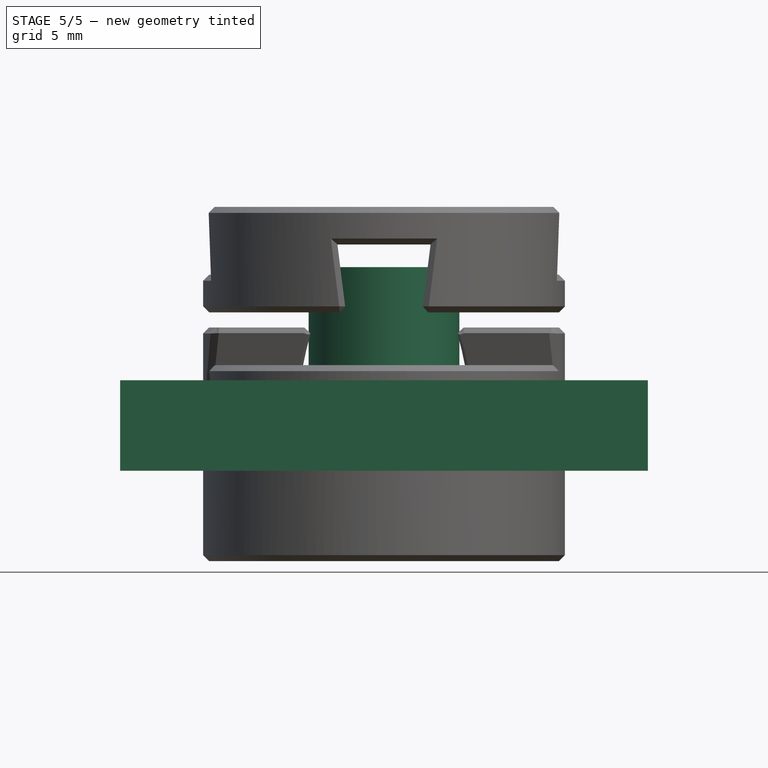
[diagram: stage 5 of 5 — front view after this stage's code; geometry added in this stage tinted green]
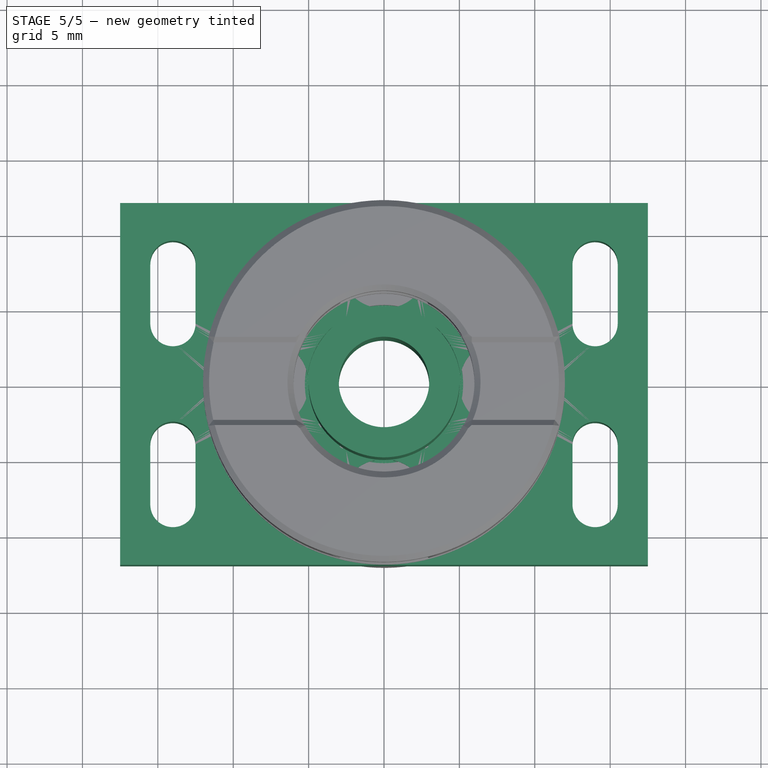
[diagram: stage 5 of 5 — top view after this stage's code; geometry added in this stage tinted green]
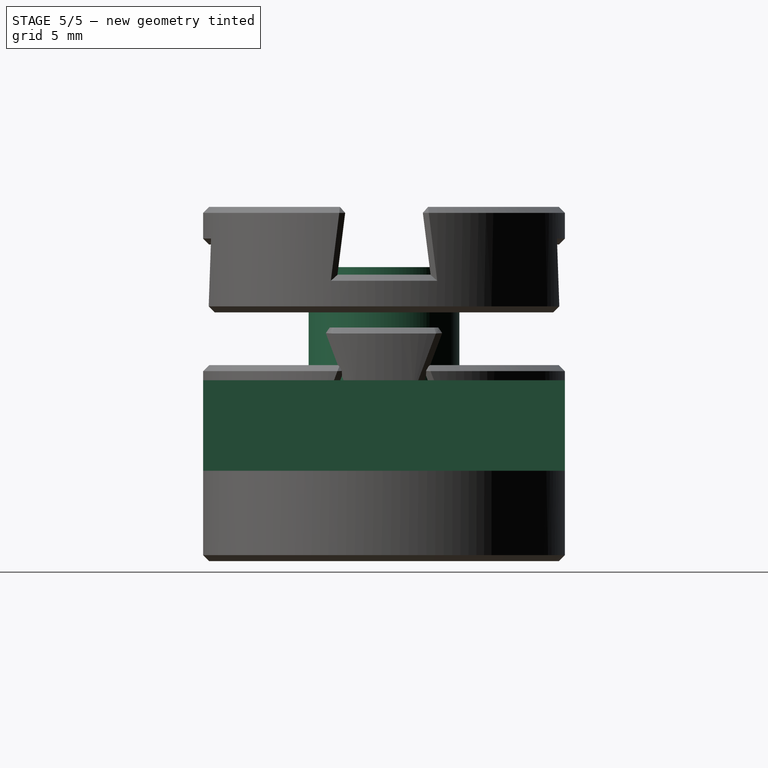
[diagram: stage 5 of 5 — right view after this stage's code; geometry added in this stage tinted green]
FEATURE [Sketcher::SketchObject] Sketch
  FullyConstrained = true
  MapMode = 5
  Support = -> [XY_Plane]
  sketch-geometry (7):
    g0: Circle CenterX=0 CenterY=0 CenterZ=0 NormalX=0 NormalY=0 NormalZ=1 AngleXU=0 Radius=11
    g1: Circle CenterX=0 CenterY=0 CenterZ=0 NormalX=0 NormalY=0 NormalZ=1 AngleXU=0 Radius=3
    g2: Circle CenterX=0 CenterY=0 CenterZ=0 NormalX=0 NormalY=0 NormalZ=1 AngleXU=0 Radius=8
    g3: Circle CenterX=0 CenterY=8 CenterZ=0 NormalX=0 NormalY=0 NormalZ=1 AngleXU=0 Radius=1.5
    g4: Circle CenterX=-8 CenterY=0 CenterZ=0 NormalX=0 NormalY=0 NormalZ=1 AngleXU=0 Radius=1.5
    g5: Circle CenterX=0 CenterY=-8 CenterZ=0 NormalX=0 NormalY=0 NormalZ=1 AngleXU=0 Radius=1.5
    g6: Circle CenterX=8 CenterY=0 CenterZ=0 NormalX=0 NormalY=0 NormalZ=1 AngleXU=0 Radius=1.5
  constraints (18):
    c: Coincident(g0,g-1)
    c: Radius(g0) = 11
    c: Coincident(g1,g0)
    c: Coincident(g2,g0)
    c: Radius(g1) = 3
    c: Radius(g2) = 8
    c: PointOnObject(g3,g2)
    c: PointOnObject(g4,g2)
    c: PointOnObject(g5,g2)
    c: PointOnObject(g6,g2)
    c: Horizontal(g4,g0)
    c: Horizontal(g0,g6)
    c: Vertical(g5,g0)
    c: Vertical(g0,g3)
    c: Equal(g4,g5)
    c: Equal(g5,g3)
    c: Equal(g3,g6)
    c: Radius(g6) = 1.5
FEATURE [PartDesign::Pad] Pad
  Direction = (1,1,1)
  Length = 3.5
  Length2 = 100
  Profile = -> Sketch
  Type = 0
FEATURE [Sketcher::SketchObject] Sketch001
  ExternalGeometry = -> [Pad]
  FullyConstrained = true
  MapMode = 5
  Placement = pos=(0,0,0) rot=(1,0,0;3.14159rad)
  Support = -> [Pad]
  sketch-geometry (2):
    g0: Circle CenterX=0 CenterY=0 CenterZ=0 NormalX=0 NormalY=0 NormalZ=1 AngleXU=0 Radius=3
    g1: Circle CenterX=0 CenterY=0 CenterZ=0 NormalX=0 NormalY=0 NormalZ=1 AngleXU=0 Radius=5
  constraints (4):
    c: Coincident(g0,g-1)
    c: Coincident(g1,g0)
    c: Radius(g1) = 5
    c: Radius(g0) = 3
FEATURE [PartDesign::Pad] Pad001
  BaseFeature = -> Pad
  Direction = (1,1,1)
  Length = 1.5
  Length2 = 100
  Profile = -> Sketch001
  Type = 0
FEATURE [Sketcher::SketchObject] Sketch002
  FullyConstrained = true
  MapMode = 5
  Placement = pos=(0,0,3.5) rot=(0,0,1;0rad)
  Support = -> [Pad001]
  sketch-geometry (2):
    g0: Circle CenterX=0 CenterY=0 CenterZ=0 NormalX=0 NormalY=0 NormalZ=1 AngleXU=0 Radius=3
    g1: Circle CenterX=0 CenterY=0 CenterZ=0 NormalX=0 NormalY=0 NormalZ=1 AngleXU=0 Radius=5
  constraints (4):
    c: Coincident(g0,g-1)
    c: Coincident(g1,g0)
    c: Radius(g1) = 5
    c: Radius(g0) = 3
FEATURE [PartDesign::Pad] Pad002
  BaseFeature = -> Pad001
  Direction = (1,1,1)
  Length = 10
  Length2 = 100
  Profile = -> Sketch002
  Type = 0
FEATURE [PartDesign::Body] Body
  Group = -> [Sketch,Pad,Sketch001,Pad001,Sketch002,Pad002]
  Origin = -> Origin
  Tip = -> Pad002
FEATURE [Sketcher::SketchObject] Sketch003
  FullyConstrained = true
  MapMode = 5
  Support = -> [XY_Plane001]
  sketch-geometry (10):
    g0: LineSegment StartX=-17.5 StartY=12 StartZ=0 EndX=17.5 EndY=12 EndZ=0
    g1: LineSegment StartX=17.5 StartY=12 StartZ=0 EndX=17.5 EndY=-12 EndZ=0
    g2: LineSegment StartX=17.5 StartY=-12 StartZ=0 EndX=-17.5 EndY=-12 EndZ=0
    g3: LineSegment StartX=-17.5 StartY=-12 StartZ=0 EndX=-17.5 EndY=12 EndZ=0
    g4: Circle CenterX=0 CenterY=0 CenterZ=0 NormalX=0 NormalY=0 NormalZ=1 AngleXU=0 Radius=5.1
    g5: Circle CenterX=0 CenterY=0 CenterZ=0 NormalX=0 NormalY=0 NormalZ=1 AngleXU=0 Radius=8
    g6: Circle CenterX=-8 CenterY=0 CenterZ=0 NormalX=0 NormalY=0 NormalZ=1 AngleXU=0 Radius=1.45
    g7: Circle CenterX=8 CenterY=0 CenterZ=0 NormalX=0 NormalY=0 NormalZ=1 AngleXU=0 Radius=1.45
    g8: Circle CenterX=0 CenterY=8 CenterZ=0 NormalX=0 NormalY=0 NormalZ=1 AngleXU=0 Radius=1.45
    g9: Circle CenterX=0 CenterY=-8 CenterZ=0 NormalX=0 NormalY=0 NormalZ=1 AngleXU=0 Radius=1.45
  constraints (28):
    c: Coincident(g0,g1)
    c: Coincident(g1,g2)
    c: Coincident(g2,g3)
    c: Coincident(g3,g0)
    c: Horizontal(g0)
    c: Horizontal(g2)
    c: Vertical(g1)
    c: Vertical(g3)
    c: Coincident(g4,g-1)
    c: Radius(g4) = 5.1
    c: Coincident(g5,g4)
    c: PointOnObject(g6,g5)
    c: PointOnObject(g7,g5)
    c: PointOnObject(g8,g5)
    c: PointOnObject(g9,g5)
    c: Vertical(g9,g4)
    c: Vertical(g4,g8)
    c: Horizontal(g6,g4)
    c: Horizontal(g4,g7)
    c: Equal(g6,g9)
    c: Equal(g9,g7)
    c: Equal(g7,g8)
    c: Radius(g6) = 1.45
    c: Radius(g5) = 8
    c: DistanceX(g0,g0) = 35
    c: DistanceX(g0,g4) = 17.5
    c: DistanceY(g4,g0) = 12
    c: DistanceY(g1,g1) = 24
FEATURE [PartDesign::Pad] Pad003
  Direction = (1,1,1)
  Length = 6
  Length2 = 100
  Profile = -> Sketch003
  Type = 0
FEATURE [Sketcher::SketchObject] Sketch004
  ExternalGeometry = -> [Pad003]
  FullyConstrained = true
  MapMode = 5
  Placement = pos=(0,0,6) rot=(0,0,1;0rad)
  Support = -> [Pad003]
  sketch-geometry (4):
    g0: Circle CenterX=-8 CenterY=0 CenterZ=0 NormalX=0 NormalY=0 NormalZ=1 AngleXU=0 Radius=3
    g1: Circle CenterX=0 CenterY=-8 CenterZ=0 NormalX=0 NormalY=0 NormalZ=1 AngleXU=0 Radius=3
    g2: Circle CenterX=8 CenterY=0 CenterZ=0 NormalX=0 NormalY=0 NormalZ=1 AngleXU=0 Radius=3
    g3: Circle CenterX=0 CenterY=8 CenterZ=0 NormalX=0 NormalY=0 NormalZ=1 AngleXU=0 Radius=3
  constraints (8):
    c: Coincident(g0,g-4)
    c: Coincident(g1,g-5)
    c: Coincident(g2,g-6)
    c: Coincident(g3,g-3)
    c: Equal(g1,g0)
    c: Equal(g0,g2)
    c: Equal(g2,g3)
    c: Radius(g3) = 3
FEATURE [PartDesign::Pocket] Pocket
  BaseFeature = -> Pad003
  Length = 2
  Length2 = 100
  Profile = -> Sketch004
  Type = 0
FEATURE [Sketcher::SketchObject] Sketch005
  FullyConstrained = true
  MapMode = 5
  Placement = pos=(0,0,6) rot=(0,0,1;0rad)
  Support = -> [Pocket]
  sketch-geometry (21):
    g0: Circle CenterX=0 CenterY=0 CenterZ=0 NormalX=0 NormalY=0 NormalZ=1 AngleXU=0 Radius=11
    g1: ArcOfCircle CenterX=-14 CenterY=4 CenterZ=0 NormalX=0 NormalY=0 NormalZ=1 AngleXU=0 Radius=1.5 StartAngle=3.14159 EndAngle=6.28319
    g2: ArcOfCircle CenterX=-14 CenterY=8 CenterZ=0 NormalX=0 NormalY=0 NormalZ=1 AngleXU=0 Radius=1.5 StartAngle=2e-16 EndAngle=3.14159
    g3: LineSegment StartX=-12.5 StartY=4 StartZ=0 EndX=-12.5 EndY=8 EndZ=0
    g4: LineSegment StartX=-15.5 StartY=4 StartZ=0 EndX=-15.5 EndY=8 EndZ=0
    g5: ArcOfCircle CenterX=14 CenterY=4 CenterZ=0 NormalX=0 NormalY=0 NormalZ=1 AngleXU=0 Radius=1.5 StartAngle=3.14159 EndAngle=6.28319
    g6: ArcOfCircle CenterX=14 CenterY=8 CenterZ=0 NormalX=0 NormalY=0 NormalZ=1 AngleXU=0 Radius=1.5 StartAngle=0 EndAngle=3.14159
    g7: LineSegment StartX=15.5 StartY=4 StartZ=0 EndX=15.5 EndY=8 EndZ=0
    g8: LineSegment StartX=12.5 StartY=4 StartZ=0 EndX=12.5 EndY=8 EndZ=0
    g9: ArcOfCircle CenterX=-14 CenterY=-4 CenterZ=0 NormalX=0 NormalY=0 NormalZ=1 AngleXU=0 Radius=1.5 StartAngle=2e-16 EndAngle=3.14159
    g10: ArcOfCircle CenterX=-14 CenterY=-8 CenterZ=0 NormalX=0 NormalY=0 NormalZ=1 AngleXU=0 Radius=1.5 StartAngle=3.14159 EndAngle=6.28319
    g11: LineSegment StartX=-15.5 StartY=-4 StartZ=0 EndX=-15.5 EndY=-8 EndZ=0
    g12: LineSegment StartX=-12.5 StartY=-4 StartZ=0 EndX=-12.5 EndY=-8 EndZ=0
    g13: ArcOfCircle CenterX=14 CenterY=-4 CenterZ=0 NormalX=0 NormalY=0 NormalZ=1 AngleXU=0 Radius=1.5 StartAngle=1e-16 EndAngle=3.14159
    g14: ArcOfCircle CenterX=14 CenterY=-8 CenterZ=0 NormalX=0 NormalY=0 NormalZ=1 AngleXU=0 Radius=1.5 StartAngle=3.14159 EndAngle=6.28319
    g15: LineSegment StartX=12.5 StartY=-4 StartZ=0 EndX=12.5 EndY=-8 EndZ=0
    g16: LineSegment StartX=15.5 StartY=-4 StartZ=0 EndX=15.5 EndY=-8 EndZ=0
    g17: Circle CenterX=-14 CenterY=4 CenterZ=0 NormalX=0 NormalY=0 NormalZ=1 AngleXU=0 Radius=3
    g18: Circle CenterX=-14 CenterY=-4 CenterZ=0 NormalX=0 NormalY=0 NormalZ=1 AngleXU=0 Radius=3
    g19: Circle CenterX=14 CenterY=-4 CenterZ=0 NormalX=0 NormalY=0 NormalZ=1 AngleXU=0 Radius=3
    g20: Circle CenterX=14 CenterY=4 CenterZ=0 NormalX=0 NormalY=0 NormalZ=1 AngleXU=0 Radius=3
  constraints (50):
    c: Coincident(g0,g-1)
    c: Radius(g0) = 11
    c: Tangent(g1,g4) = 1.5708
    c: Tangent(g1,g3) = -1.5708
    c: Tangent(g3,g2) = -1.5708
    c: Tangent(g4,g2) = 1.5708
    c: Vertical(g3)
    c: Equal(g1,g2)
    c: Tangent(g5,g8) = 1.5708
    c: Tangent(g5,g7) = -1.5708
    c: Tangent(g7,g6) = -1.5708
    c: Tangent(g8,g6) = 1.5708
    c: Vertical(g7)
    c: Equal(g5,g6)
    c: Tangent(g9,g12) = 1.5708
    c: Tangent(g9,g11) = -1.5708
    c: Tangent(g11,g10) = -1.5708
    c: Tangent(g12,g10) = 1.5708
    c: Vertical(g11)
    c: Equal(g9,g10)
    c: Tangent(g13,g16) = 1.5708
    c: Tangent(g13,g15) = -1.5708
    c: Tangent(g15,g14) = -1.5708
    c: Tangent(g16,g14) = 1.5708
    c: Vertical(g15)
    c: Equal(g13,g14)
    c: Equal(g1,g9)
    c: Equal(g9,g13)
    c: Equal(g13,g5)
    c: Radius(g5) = 1.5
    c: Vertical(g9,g1)
    c: Vertical(g13,g5)
    c: Horizontal(g1,g5)
    c: Horizontal(g9,g13)
    c: Coincident(g17,g1)
    c: Coincident(g18,g9)
    c: Coincident(g19,g13)
    c: Coincident(g20,g5)
    c: Equal(g17,g18)
    c: Equal(g18,g19)
    c: Equal(g19,g20)
    c: Radius(g17) = 3
    c: DistanceY(g9,g-1) = 4
    c: DistanceY(g-1,g1) = 4
    c: DistanceX(g-1,g5) = 14
    c: DistanceX(g1,g-1) = 14
    c: DistanceY(g1,g2) = 4
    c: DistanceY(g10,g9) = 4
    c: Horizontal(g10,g14)
    c: Horizontal(g2,g6)
FEATURE [PartDesign::Pocket] Pocket001
  BaseFeature = -> Pocket
  Length = 5
  Length2 = 100
  Profile = -> Sketch005
  Type = 1
FEATURE [Part::MultiCommon] Common001  label="teeth-female-base"
  Shapes = -> [Tube001,Body004]
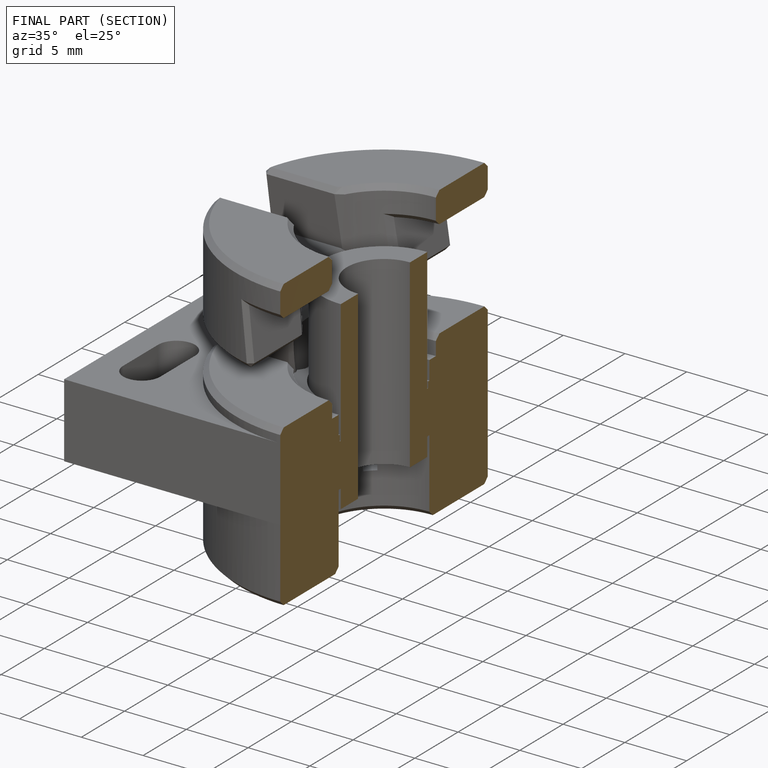
[diagram: finished part — half-section view (interior)]
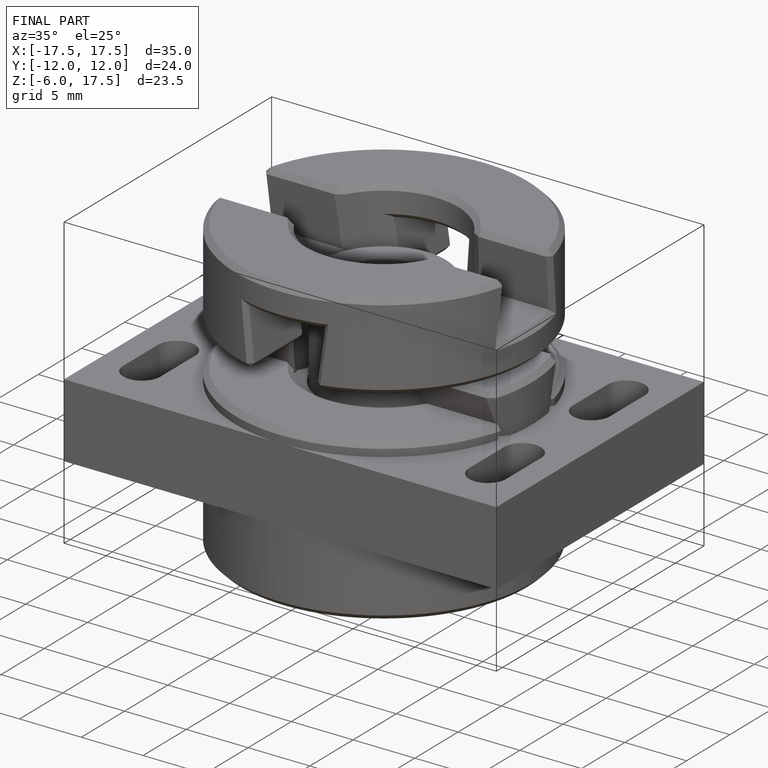
[diagram: finished part — iso view with bounding-box wireframe]
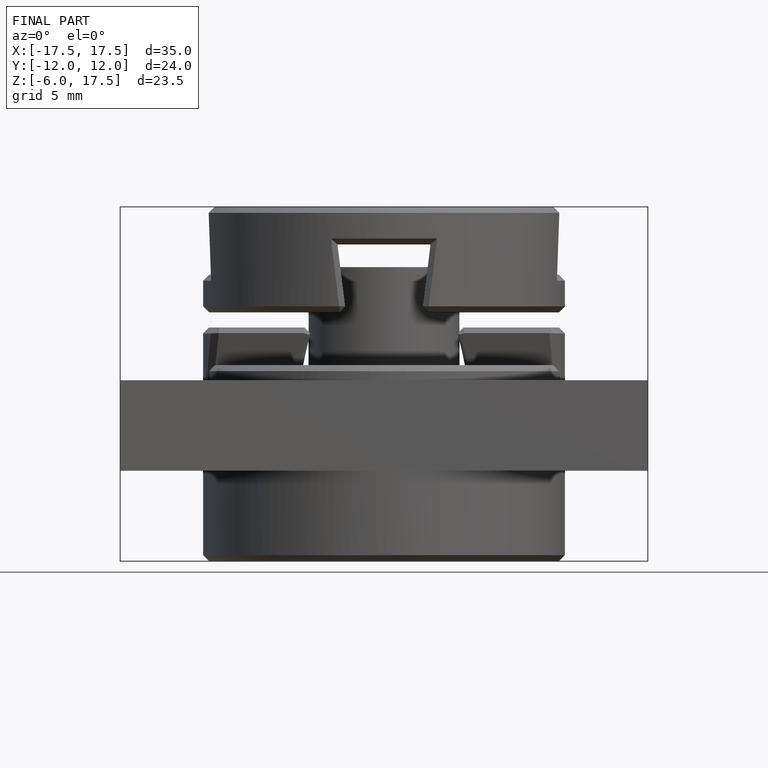
[diagram: finished part — front view with bounding-box wireframe]
